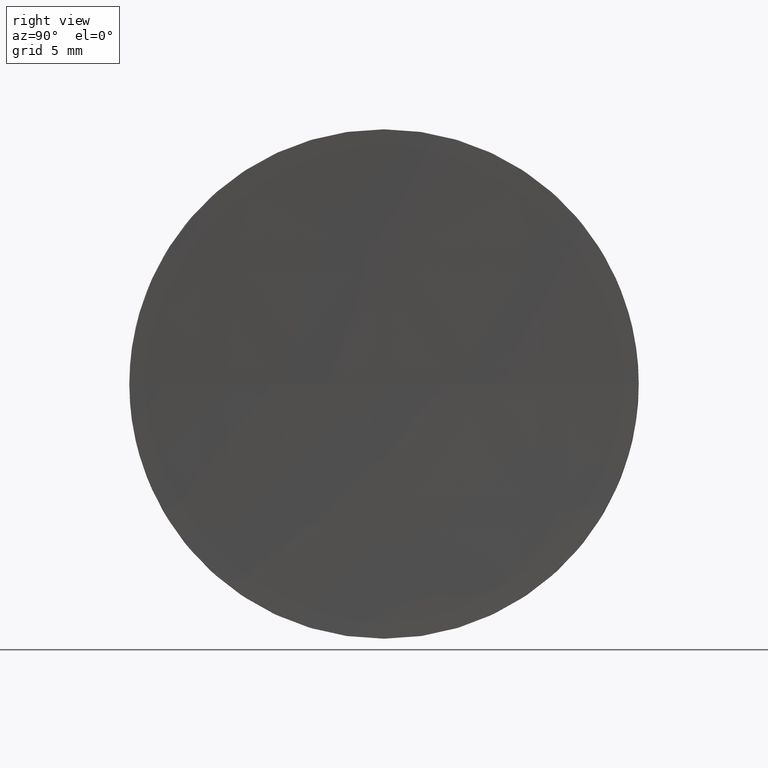
[diagram: clean part render]
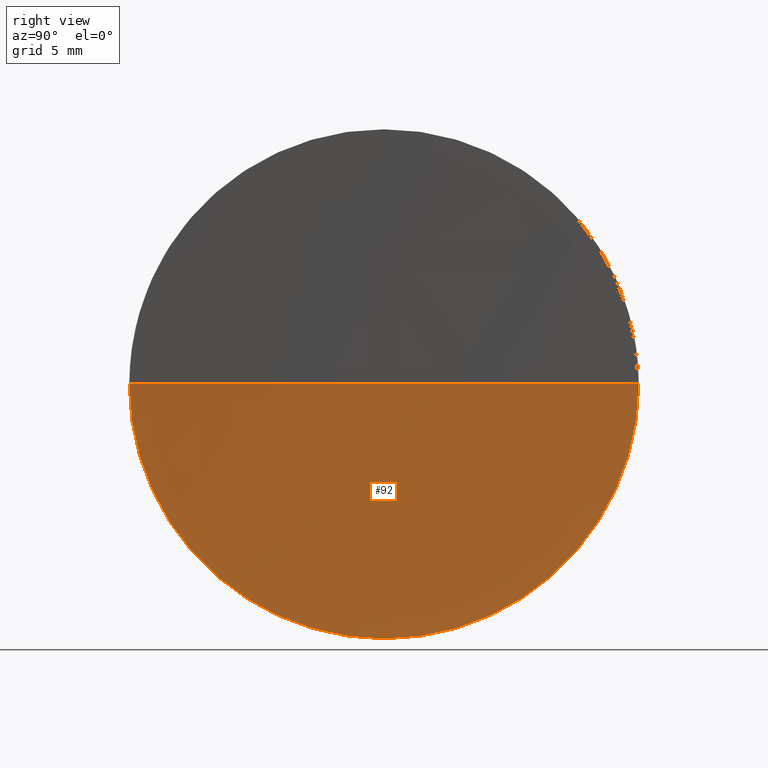
[diagram: same view with one face highlighted and labeled with its STEP entity id]
A machine part, right view. The second image highlights one B-rep face of the part: STEP entity #92.
In plain terms, the highlighted spherical surface has radius 400 mm.
Its self-contained STEP definition (entity closure, byte-faithful):
#4 = CARTESIAN_POINT ( 'NONE',  ( 121.2880157473268800, 69.37802112337243400, 0.0000000000000000000 ) ) ;
#10 = CARTESIAN_POINT ( 'NONE',  ( 121.2880157473268800, 69.37802112337243400, -12.50000000000002500 ) ) ;
#12 = ORIENTED_EDGE ( 'NONE', *, *, #47, .F. ) ;
#14 = CARTESIAN_POINT ( 'NONE',  ( 121.2880157473269200, 56.87802112337199400, 0.0000000000000000000 ) ) ;
#27 = CIRCLE ( 'NONE', #132, 400.0000000000000000 ) ;
#35 = FACE_OUTER_BOUND ( 'NONE', #128, .T. ) ;
#38 = ORIENTED_EDGE ( 'NONE', *, *, #176, .T. ) ;
#42 = AXIS2_PLACEMENT_3D ( 'NONE', #156, #71, #129 ) ;
#44 = DIRECTION ( 'NONE',  ( -1.000000000000000000, 0.0000000000000000000, 0.0000000000000000000 ) ) ;
#47 = EDGE_CURVE ( 'NONE', #138, #60, #78, .T. ) ;
#54 = CIRCLE ( 'NONE', #42, 12.50000000000002500 ) ;
#60 = VERTEX_POINT ( 'NONE', #146 ) ;
#63 = ORIENTED_EDGE ( 'NONE', *, *, #164, .F. ) ;
#70 = AXIS2_PLACEMENT_3D ( 'NONE', #4, #75, #101 ) ;
#71 = DIRECTION ( 'NONE',  ( -1.000000000000000000, -0.0000000000000000000, -0.0000000000000000000 ) ) ;
#75 = DIRECTION ( 'NONE',  ( -1.000000000000000000, -0.0000000000000000000, -0.0000000000000000000 ) ) ;
#78 = CIRCLE ( 'NONE', #184, 400.0000000000000000 ) ;
#82 = DIRECTION ( 'NONE',  ( 0.0000000000000000000, -1.224646799147353200E-016, 1.000000000000000000 ) ) ;
#90 = CARTESIAN_POINT ( 'NONE',  ( 521.0926555403137900, 69.37802112337254800, 0.0000000000000000000 ) ) ;
#92 = ADVANCED_FACE ( 'NONE', ( #35 ), #106, .F. ) ;
#93 = CARTESIAN_POINT ( 'NONE',  ( 121.2880157473269200, 81.87802112337300300, 1.530808498934246700E-015 ) ) ;
#101 = DIRECTION ( 'NONE',  ( 0.0000000000000000000, 0.0000000000000000000, 1.000000000000000000 ) ) ;
#102 = ORIENTED_EDGE ( 'NONE', *, *, #155, .F. ) ;
#103 = DIRECTION ( 'NONE',  ( 0.0000000000000000000, 0.0000000000000000000, 1.000000000000000000 ) ) ;
#104 = DIRECTION ( 'NONE',  ( 0.0000000000000000000, -1.000000000000000000, 0.0000000000000000000 ) ) ;
#106 = SPHERICAL_SURFACE ( 'NONE', #153, 400.0000000000000000 ) ;
#116 = DIRECTION ( 'NONE',  ( 0.0000000000000000000, 0.0000000000000000000, -1.000000000000000000 ) ) ;
#128 = EDGE_LOOP ( 'NONE', ( #102, #38, #12, #63 ) ) ;
#129 = DIRECTION ( 'NONE',  ( 0.0000000000000000000, 0.0000000000000000000, 1.000000000000000000 ) ) ;
#132 = AXIS2_PLACEMENT_3D ( 'NONE', #166, #82, #182 ) ;
#138 = VERTEX_POINT ( 'NONE', #14 ) ;
#139 = CIRCLE ( 'NONE', #70, 12.50000000000002500 ) ;
#146 = CARTESIAN_POINT ( 'NONE',  ( 121.0926555403137900, 69.37802112337252000, 0.0000000000000000000 ) ) ;
#148 = CARTESIAN_POINT ( 'NONE',  ( 521.0926555403137900, 69.37802112337254800, 0.0000000000000000000 ) ) ;
#153 = AXIS2_PLACEMENT_3D ( 'NONE', #148, #103, #104 ) ;
#155 = EDGE_CURVE ( 'NONE', #186, #180, #54, .T. ) ;
#156 = CARTESIAN_POINT ( 'NONE',  ( 121.2880157473268800, 69.37802112337243400, 0.0000000000000000000 ) ) ;
#164 = EDGE_CURVE ( 'NONE', #180, #138, #139, .T. ) ;
#166 = CARTESIAN_POINT ( 'NONE',  ( 521.0926555403137900, 69.37802112337254800, 0.0000000000000000000 ) ) ;
#176 = EDGE_CURVE ( 'NONE', #186, #60, #27, .T. ) ;
#180 = VERTEX_POINT ( 'NONE', #10 ) ;
#182 = DIRECTION ( 'NONE',  ( 0.0000000000000000000, -1.000000000000000000, -1.224646799147353200E-016 ) ) ;
#184 = AXIS2_PLACEMENT_3D ( 'NONE', #90, #116, #44 ) ;
#186 = VERTEX_POINT ( 'NONE', #93 ) ;